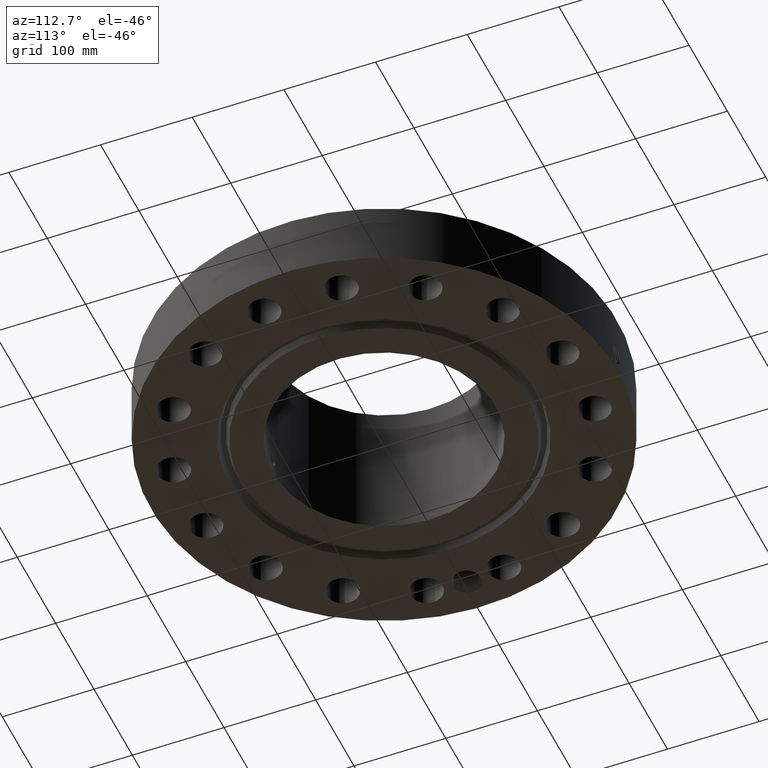
[diagram: clean part render]
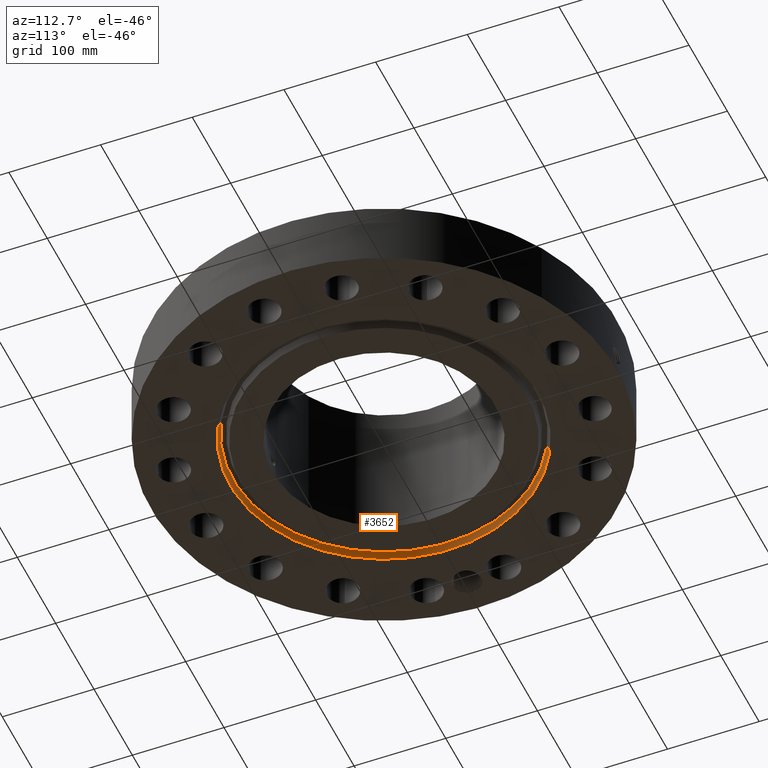
[diagram: same view with one face highlighted and labeled with its STEP entity id]
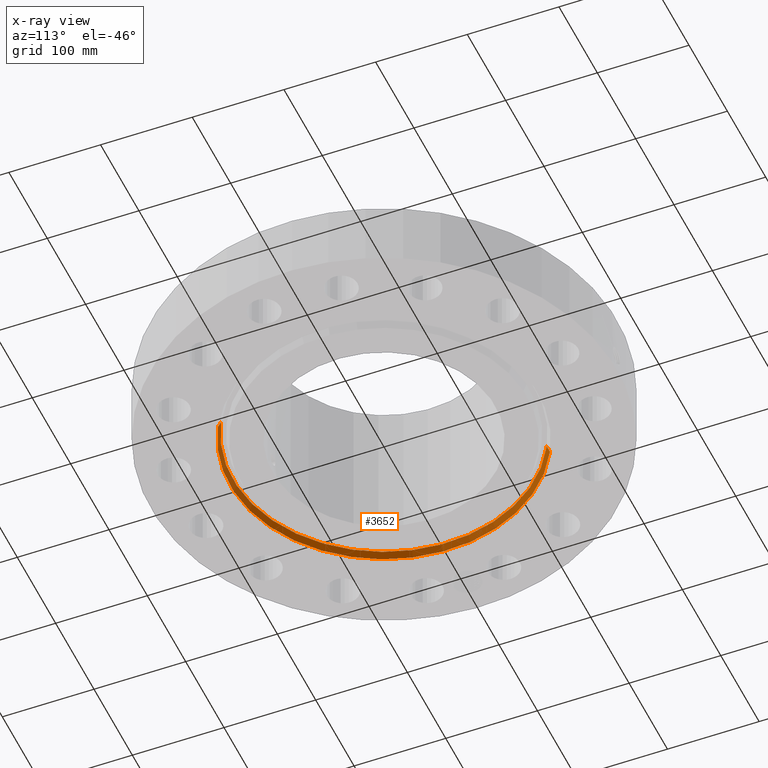
[diagram: x-ray of the same camera — body ghosted, the highlighted face saturated]
A machine part, auxiliary view. The second image highlights one B-rep face of the part: STEP entity #3652.
The next image is the same camera in x-ray: the body ghosted, the highlighted face saturated — about 0% of this face is hidden behind the body in this view.
In plain terms, the highlighted conical surface has half-angle 23 deg.
Its self-contained STEP definition (entity closure, byte-faithful):
#2635=AXIS2_PLACEMENT_3D('Circle Axis2P3D',#2633,#2634,$) ;
#3613=AXIS2_PLACEMENT_3D('Cone Axis2P3D',#3610,#3611,#3612) ;
#3643=AXIS2_PLACEMENT_3D('Circle Axis2P3D',#3641,#3642,$) ;
#2611=CARTESIAN_POINT('Vertex',(3.1089894892,-5.69096708691,0.293721933856)) ;
#2613=CARTESIAN_POINT('Vertex',(-3.1089894892,5.69096708691,0.293721933856)) ;
#2633=CARTESIAN_POINT('Axis2P3D Location',(0.,0.,0.293721933856)) ;
#3610=CARTESIAN_POINT('Axis2P3D Location',(0.,0.,0.293721933856)) ;
#3619=CARTESIAN_POINT('Vertex',(-3.16876309742,5.80038194284,0.)) ;
#3621=CARTESIAN_POINT('Vertex',(3.16876309742,-5.80038194284,-3.84644197508E-016)) ;
#3624=CARTESIAN_POINT('Line Origine',(3.13887629331,-5.74567451487,0.146860966928)) ;
#3629=CARTESIAN_POINT('Line Origine',(-3.13887629331,5.74567451487,0.146860966928)) ;
#3641=CARTESIAN_POINT('Axis2P3D Location',(0.,0.,0.)) ;
#2634=DIRECTION('Axis2P3D Direction',(0.,0.,0.0393700787402)) ;
#3611=DIRECTION('Axis2P3D Direction',(-0.,-0.,-0.0393700787402)) ;
#3612=DIRECTION('Axis2P3D XDirection',(0.0188750212049,-0.0345504945626,0.)) ;
#3625=DIRECTION('Vector Direction',(0.00737505833565,-0.0134999537303,-0.0362403485611)) ;
#3630=DIRECTION('Vector Direction',(-0.00737505833565,0.0134999537303,-0.0362403485611)) ;
#3642=DIRECTION('Axis2P3D Direction',(0.,0.,-0.0393700787402)) ;
#3626=VECTOR('Line Direction',#3625,0.0393700787402) ;
#3631=VECTOR('Line Direction',#3630,0.0393700787402) ;
#3647=ORIENTED_EDGE('',*,*,#3645,.T.) ;
#3648=ORIENTED_EDGE('',*,*,#3633,.T.) ;
#3649=ORIENTED_EDGE('',*,*,#2637,.T.) ;
#3650=ORIENTED_EDGE('',*,*,#3628,.F.) ;
#3652=ADVANCED_FACE('PartBody',(#3651),#3614,.F.) ;
#2636=CIRCLE('generated circle',#2635,6.48482243614) ;
#3644=CIRCLE('generated circle',#3643,6.60950000003) ;
#3614=CONICAL_SURFACE('Cone',#3613,6.48482243614,0.401425727959) ;
#2637=EDGE_CURVE('',#2614,#2612,#2636,.T.) ;
#3628=EDGE_CURVE('',#3622,#2612,#3627,.F.) ;
#3633=EDGE_CURVE('',#3620,#2614,#3632,.F.) ;
#3645=EDGE_CURVE('',#3622,#3620,#3644,.T.) ;
#3646=EDGE_LOOP('',(#3647,#3648,#3649,#3650)) ;
#3651=FACE_OUTER_BOUND('',#3646,.T.) ;
#3627=LINE('Line',#3624,#3626) ;
#3632=LINE('Line',#3629,#3631) ;
#2612=VERTEX_POINT('',#2611) ;
#2614=VERTEX_POINT('',#2613) ;
#3620=VERTEX_POINT('',#3619) ;
#3622=VERTEX_POINT('',#3621) ;